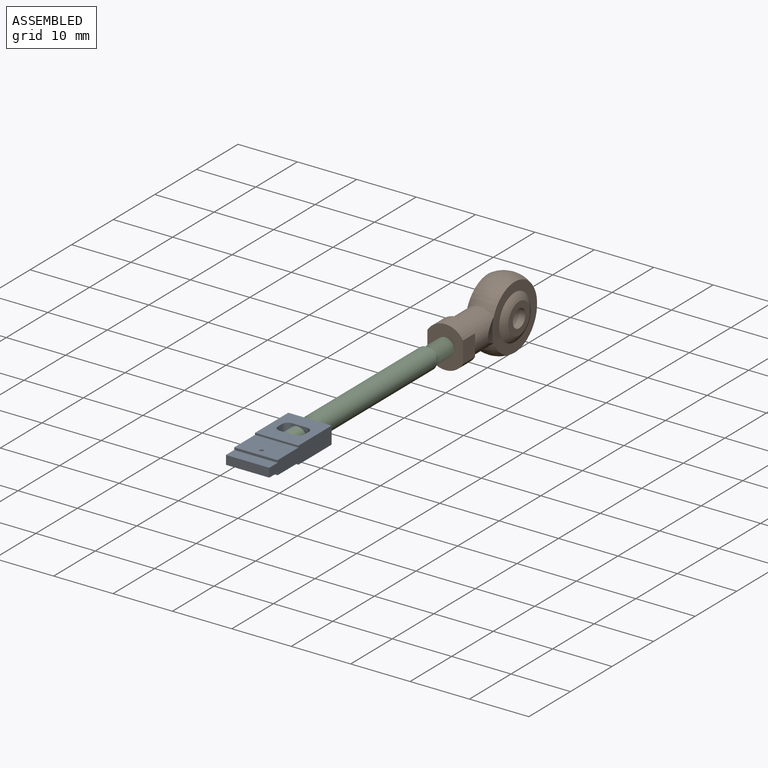
[diagram: assembled view]
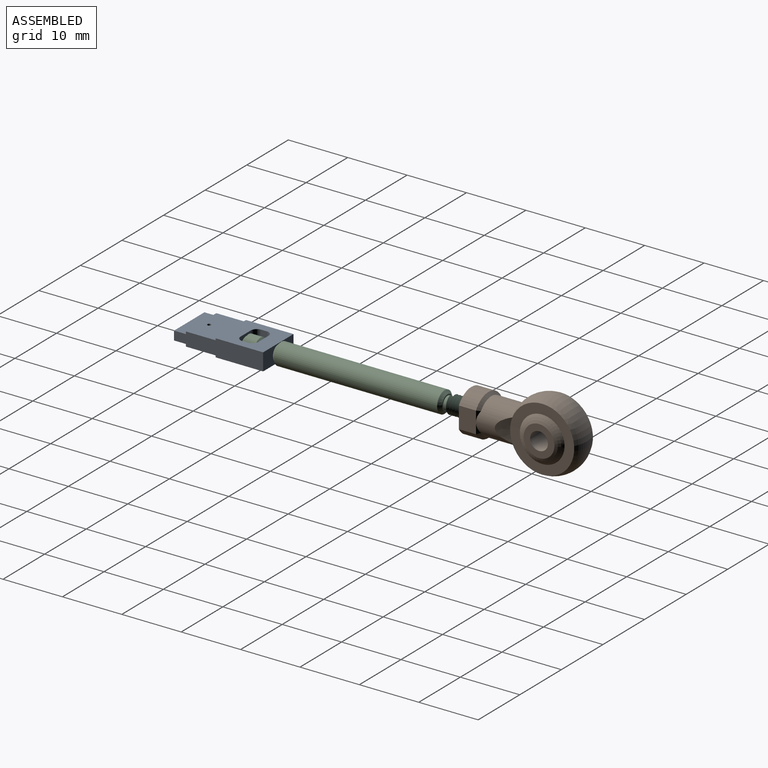
[diagram: assembled view, second angle]
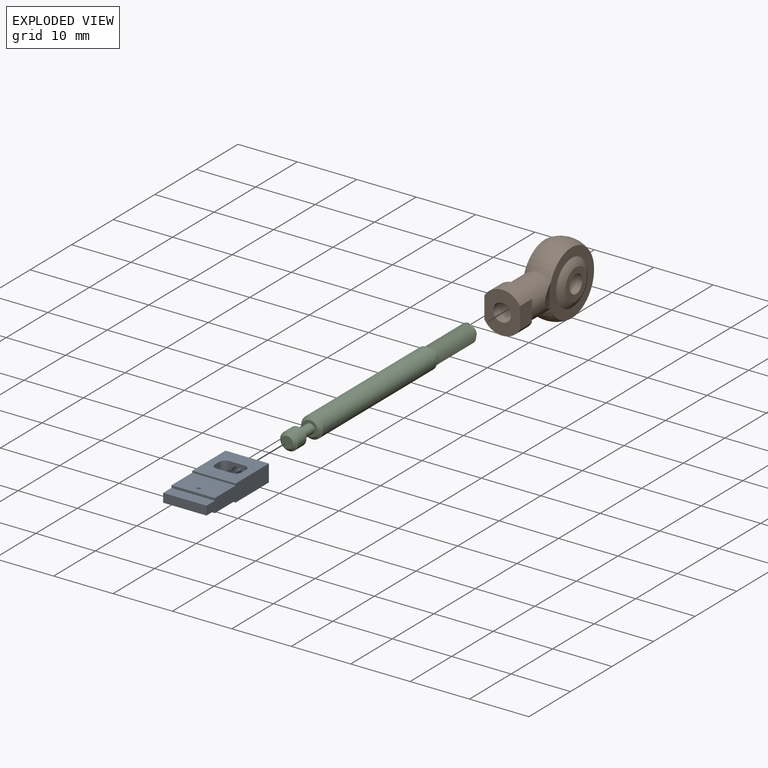
[diagram: exploded view]
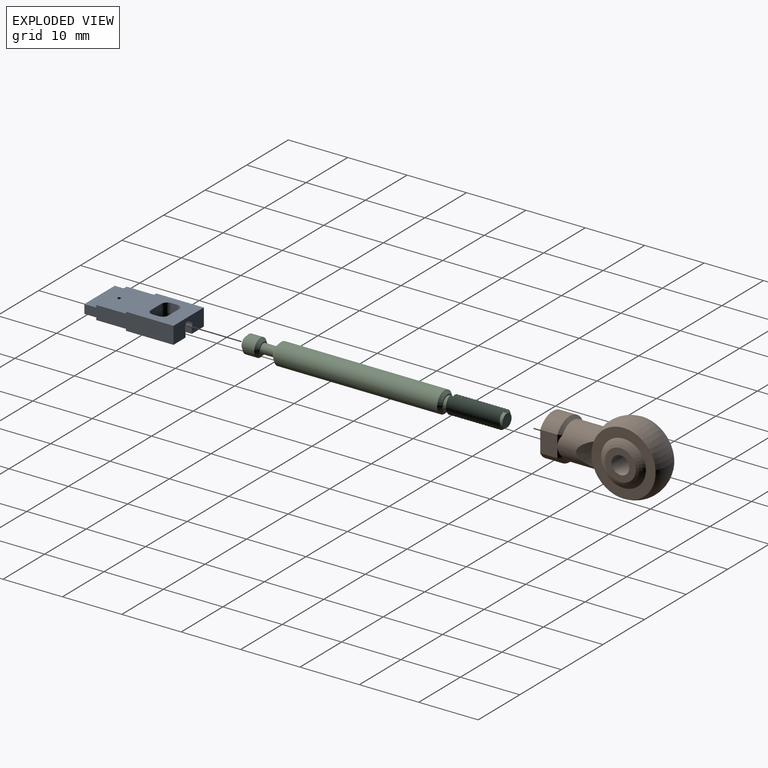
[diagram: exploded view, second angle]
ASSEMBLY  parts=3 mates=2
PART A: 26 faces, bbox 7.3x15x2.9 mm
  f0: plane 7.3x2.9mm, normal (0,-1,0), area 17.6mm2, adj f1,f11,f12,f13,f23,f24,f25
  f1: plane 8x7.3mm, normal (0,0,-1), area 45.8mm2, adj f0,f2,f12,f13,f14,f15,f16,f17
  f2: plane 7.3x0.3mm, normal (0,1,0), area 2.2mm2, adj f1,f3,f12,f13
  f3: plane 7.3x5mm, normal (0,0,-1), area 36.2mm2, adj f2,f4,f12,f13,f22
  f4: plane 7.3x0.4mm, normal (0,1,0), area 2.9mm2, adj f3,f5,f12,f13
  f5: plane 7.3x2mm, normal (0,0,-1), area 14.6mm2, adj f4,f6,f12,f13
  f6: plane 7.3x1.5mm, normal (0,1,0), area 10.9mm2, adj f5,f7,f12,f13
  f7: plane 7.3x2mm, normal (0,0,1), area 14.6mm2, adj f6,f8,f12,f13
  f8: plane 7.3x0.4mm, normal (0,1,0), area 2.9mm2, adj f7,f9,f12,f13
  f9: plane 7.3x5mm, normal (0,0,1), area 36.2mm2, adj f8,f10,f12,f13,f22
  f10: plane 7.3x0.3mm, normal (0,1,0), area 2.2mm2, adj f9,f11,f12,f13
  f11: plane 8x7.3mm, normal (0,0,1), area 42mm2, adj f0,f10,f12,f13,f14,f15,f16,f17
  f12: plane 15x2.9mm, normal (1,0,0), area 37.7mm2, adj f0,f1,f2,f3,f4,f5,f6,f7
  f13: plane 15x2.9mm, normal (-1,0,0), area 37.7mm2, adj f0,f1,f2,f3,f4,f5,f6,f7
  f14: cylinder r=1mm len=2.9mm, axis (0,0,1), area 4.6mm2, adj f1,f11,f15,f21
  f15: plane 2.9x2.5mm, normal (0,1,0), area 3.7mm2, adj f1,f11,f14,f16,f23,f24,f25
  f16: cylinder r=1mm len=2.9mm, axis (0,0,1), area 4.6mm2, adj f1,f11,f15,f17
  f17: plane 2.9x1mm, normal (-1,0,0), area 2.9mm2, adj f1,f11,f16,f18
  f18: cylinder r=1mm len=2.9mm, axis (0,0,1), area 4.6mm2, adj f1,f11,f17,f19
  f19: plane 2.9x2.5mm, normal (0,-1,0), area 7.3mm2, adj f1,f11,f18,f20
  f20: cylinder r=1mm len=2.9mm, axis (0,0,1), area 4.6mm2, adj f1,f11,f19,f21
  f21: plane 2.9x1mm, normal (1,0,0), area 2.9mm2, adj f1,f11,f14,f20
  f22: cylinder r=0.3mm len=2.3mm, axis (0,0,1), area 4.3mm2, adj f3,f9
  f23: plane 2.5x0.95mm, normal (1,0,0), area 2.4mm2, adj f0,f11,f15,f24
  f24: cylinder r=0.9mm len=2.5mm, axis (0,-1,0), area 9.7mm2, adj f0,f15,f23,f25
  f25: plane 2.5x0.95mm, normal (-1,0,0), area 2.4mm2, adj f0,f11,f15,f24
PART B: 24 faces, bbox 6x18.9x10.8 mm
  f0: cylinder r=3mm len=6mm, axis (0,1,0), area 83.3mm2, adj f6,f16,f17,f18,f19,f20,f21,f22
  f1: plane 5.2x5.2mm, normal (-1,0,0), area 14.2mm2, adj f2,f8
  f2: cylinder r=1.5mm len=6mm, axis (-1,0,0), area 56.5mm2, adj f1,f3
  f3: plane 5.2x5.2mm, normal (1,0,0), area 14.2mm2, adj f2,f4
  f4: torus R=1.5mm, axis (-1,0,0), area 28.3mm2, adj f3,f5
  f5: plane 10.79x10.79mm, normal (1,0,0), area 46.9mm2, adj f4,f6,f22
  f6: torus R=1.5mm, axis (-1,0,0), area 145.4mm2, adj f0,f5,f7
  f7: plane 10.79x10.79mm, normal (-1,0,0), area 46.9mm2, adj f6,f8,f23
  f8: torus R=1.5mm, axis (-1,0,0), area 28.3mm2, adj f1,f7
  f9: plane 7x6mm, normal (0,1,0), area 29mm2, adj f10,f11,f12,f13,f14
  f10: cylinder r=3.5mm len=6mm, axis (0,1,0), area 20.7mm2, adj f9,f11,f12,f19
  f11: plane 3.61x2.88mm, normal (1,0,0), area 10.4mm2, adj f9,f10,f13,f16,f17
  f12: plane 3.61x2.88mm, normal (-1,0,0), area 10.4mm2, adj f9,f10,f13,f20,f21
  f13: cylinder r=3.5mm len=6mm, axis (0,1,0), area 20.7mm2, adj f9,f11,f12,f18
  f14: cylinder r=1.5mm len=6mm, axis (0,1,0), area 56.5mm2, adj f9,f15
  f15: plane 3x3mm, normal (0,1,0), area 7.1mm2, adj f14
  f16: plane 1.81x0.51mm, normal (0.71,-0.71,0), area 0.4mm2, adj f0,f11,f18
  f17: plane 1.81x0.51mm, normal (0.71,-0.71,0), area 0.4mm2, adj f0,f11,f19
  f18: cone r=3mm half-angle=45deg, axis (0,1,0), area 4.6mm2, adj f0,f13,f16,f20
  f19: cone r=3mm half-angle=45deg, axis (0,1,0), area 4.6mm2, adj f0,f10,f17,f21
  f20: plane 1.81x0.51mm, normal (-0.71,-0.71,0), area 0.4mm2, adj f0,f12,f18
  f21: plane 1.81x0.51mm, normal (-0.71,-0.71,0), area 0.4mm2, adj f0,f12,f19
  f22: cone r=5.4mm half-angle=70deg, axis (1,0,0), area 6mm2, adj f0,f5
  f23: cone r=5.4mm half-angle=70deg, axis (-1,0,0), area 6mm2, adj f0,f7
PART C: 37 faces, bbox 3.6x44x3.6 mm
  f0: cylinder r=1.1mm len=2.2mm, axis (0,-1,0), area 2.3mm2, adj f1,f27,f28,f30
  f1: cylinder r=1.1mm len=2.2mm, axis (0,-1,0), area 0.1mm2, adj f0,f2,f30,f32
  f2: cylinder r=1.1mm len=2.2mm, axis (0,-1,0), area 0.1mm2, adj f1,f3,f30,f32
  f3: cylinder r=1.1mm len=2.2mm, axis (0,-1,0), area 0.1mm2, adj f2,f4,f30,f32
  f4: cylinder r=1.1mm len=2.2mm, axis (0,-1,0), area 0.1mm2, adj f3,f5,f30,f32
  f5: cylinder r=1.1mm len=2.2mm, axis (0,-1,0), area 0.1mm2, adj f4,f6,f30,f32
  f6: cylinder r=1.1mm len=2.2mm, axis (0,-1,0), area 0.1mm2, adj f5,f7,f30,f32
  f7: cylinder r=1.1mm len=2.2mm, axis (0,-1,0), area 0.1mm2, adj f6,f8,f30,f32
  f8: cylinder r=1.1mm len=2.2mm, axis (0,-1,0), area 0.1mm2, adj f7,f9,f30,f32
  f9: cylinder r=1.1mm len=2.2mm, axis (0,-1,0), area 0.1mm2, adj f8,f10,f30,f32
  f10: cylinder r=1.1mm len=2.2mm, axis (0,-1,0), area 0.1mm2, adj f9,f11,f30,f32
  f11: cylinder r=1.1mm len=2.2mm, axis (0,-1,0), area 0.1mm2, adj f10,f12,f30,f32
  f12: cylinder r=1.1mm len=2.2mm, axis (0,-1,0), area 0.1mm2, adj f11,f13,f30,f32
  f13: cylinder r=1.1mm len=2.2mm, axis (0,-1,0), area 0.1mm2, adj f12,f14,f30,f32
  f14: cylinder r=1.1mm len=2.2mm, axis (0,-1,0), area 0.1mm2, adj f13,f15,f30,f32
  f15: cylinder r=1.1mm len=2.2mm, axis (0,-1,0), area 0.1mm2, adj f14,f16,f30,f32
  f16: cylinder r=1.1mm len=2.2mm, axis (0,-1,0), area 0.1mm2, adj f15,f17,f30,f32
  f17: cylinder r=1.1mm len=2.2mm, axis (0,-1,0), area 0.1mm2, adj f16,f26,f30,f32
  f18: plane 2x2mm, normal (0,1,0), area 3.1mm2, adj f34
  f19: cylinder r=1.5mm len=3mm, axis (0,-1,0), area 18.8mm2, adj f34,f35
  f20: plane 2x2mm, normal (0,-1,0), area 1.1mm2, adj f21,f35
  f21: cylinder r=0.8mm len=2.5mm, axis (0,-1,0), area 12.6mm2, adj f20,f22
  f22: plane 2.6x2.6mm, normal (0,1,0), area 3.3mm2, adj f21,f36
  f23: cylinder r=1.8mm len=27.5mm, axis (0,-1,0), area 311mm2, adj f33,f36
  f24: plane 2.6x2.6mm, normal (0,-1,0), area 1.6mm2, adj f25,f33
  f25: cylinder r=1.09mm len=2.18mm, axis (0,-1,0), area 6.8mm2, adj f24,f26
  f26: plane 2.2x2.2mm, normal (0,1,0), area 0.1mm2, adj f17,f25,f31
  f27: plane 2.2x2.2mm, normal (0,-1,0), area 3.8mm2, adj f0
  f28: plane 0.49x0.42mm, normal (1,0,0), area 0.1mm2, adj f0,f30,f32
  f29: plane 0.49x0.42mm, normal (-1,0,0), area 0.1mm2, adj f30,f31,f32
  f30: bspline ~9.25x3.52mm, area 72.8mm2, adj f0,f1,f2,f3,f4,f5,f6,f7
  f31: cylinder r=1.1mm len=2.2mm, axis (0,1,0), area 2.2mm2, adj f26,f29,f30,f32
  f32: bspline ~9.25x3.52mm, area 72.9mm2, adj f1,f2,f3,f4,f5,f6,f7,f8
  f33: cone r=1.3mm half-angle=45deg, axis (0,1,0), area 6.9mm2, adj f23,f24
  f34: cone r=1.5mm half-angle=45deg, axis (0,-1,0), area 5.6mm2, adj f18,f19
  f35: cone r=1mm half-angle=45deg, axis (0,1,0), area 5.6mm2, adj f19,f20
  f36: cone r=1.8mm half-angle=45deg, axis (0,-1,0), area 6.9mm2, adj f22,f23
PLACE A rot(axis=(-1,0,0),180deg) t=(-3.64,17.35,0.12)mm
PLACE B rot(axis=(-1,0,0),180deg) t=(0.01,63.35,0.12)mm
PLACE C rot(axis=(-1,0,0),180deg) t=(0.01,55.85,0.12)mm fixed
MATE fastened C.f0 <-> A.f24  axis (0,-1,0) through (0.01,17.35,0.12)mm
MATE fastened B.f0 <-> C.f0  axis (0,-1,0) through (0.01,55.85,0.12)mm
